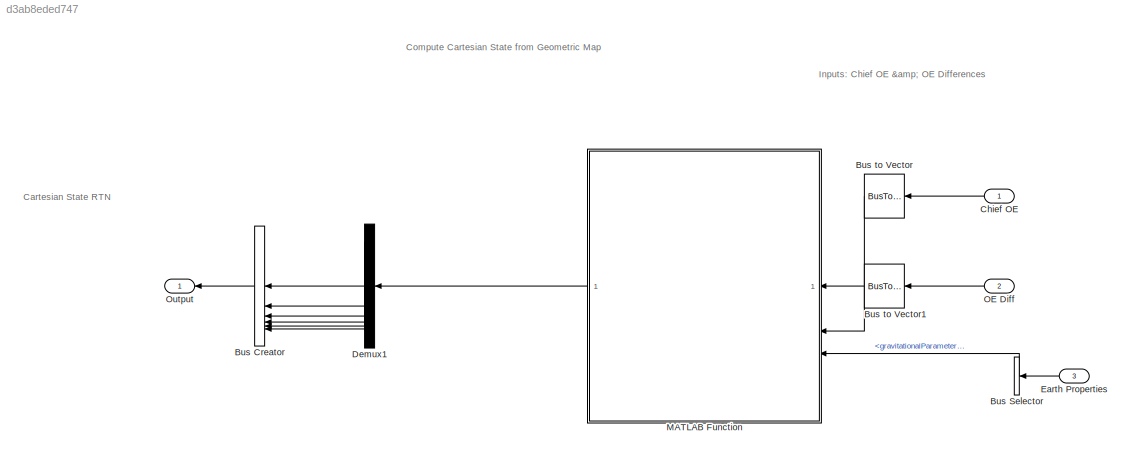
MODEL slx_d3ab8eded747
KIND model
CONFIG AbsTol = auto
CONFIG EnableMultiTasking = off
CONFIG FixedStep = dt
CONFIG MaxStep = auto
CONFIG MinStep = auto
CONFIG RelTol = 1e-3
CONFIG SampleTimeConstraint = Unconstrained
CONFIG SolverName = ode4
CONFIG StartTime = 0.0
CONFIG StopTime = 10.0
BLOCK [BusCreator] Bus Creator
  DisplayOption = bar
  InheritFromInputs = off
  Inputs = 6
  OutDataTypeStr = Bus: relativeCartesianState
BLOCK [BusSelector] Bus Selector
  OutputSignals = gravitationalParameter_m3_s2
BLOCK [BusToVector] Bus to Vector
BLOCK [BusToVector] Bus to Vector1
BLOCK [Inport] Chief OE
  OutDataTypeStr = Bus: osculatingOrbitElements
BLOCK [Demux] Demux1
  Outputs = 6
BLOCK [Inport] Earth Properties
  OutDataTypeStr = Bus: earthProperties
  Port = 3
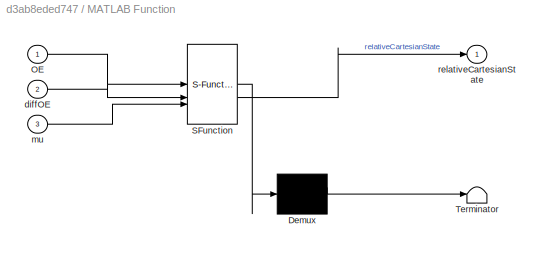
BLOCK [SubSystem] MATLAB Function
  ErrorFcn = Stateflow.Translate.translate
  LibrarySourceBlock = simulink/User-Defined\nFunctions/MATLAB Function
  PermitHierarchicalResolution = ExplicitOnly
  SFBlockType = MATLAB Function
  TreatAsAtomicUnit = on
BLOCK [Demux] MATLAB Function/ Demux 
  Outputs = 1
BLOCK [S-Function] MATLAB Function/ SFunction 
  EnableBusSupport = on
  FunctionName = sf_sfun
  PortCounts = [3 2]
  SFcnIsStateOwnerBlock = off
  SFunctionDeploymentMode = off
  Tag = Stateflow S-Function 2
BLOCK [Terminator] MATLAB Function/ Terminator 
BLOCK [Inport] MATLAB Function/OE
BLOCK [Inport] MATLAB Function/diffOE
  Port = 2
BLOCK [Inport] MATLAB Function/mu
  Port = 3
BLOCK [Outport] MATLAB Function/relativeCartesianState
BLOCK [Inport] OE Diff
  OutDataTypeStr = Bus: orbitElementDifferences
  Port = 2
BLOCK [Outport] Output
  OutDataTypeStr = Bus: relativeCartesianState
ANNOTATION (root): Inputs: Chief OE & OE Differences
ANNOTATION (root): Cartesian State RTN
ANNOTATION (root): Compute Cartesian State from Geometric Map
LINE Bus Creator:1 -> Output:1
LINE Bus Selector:1 -> MATLAB Function:3
LINE Bus to Vector1:1 -> MATLAB Function:2
LINE Bus to Vector:1 -> MATLAB Function:1
LINE Chief OE:1 -> Bus to Vector:1
LINE Demux1:1 -> Bus Creator:1
LINE Demux1:2 -> Bus Creator:2
LINE Demux1:3 -> Bus Creator:3
LINE Demux1:4 -> Bus Creator:4
LINE Demux1:5 -> Bus Creator:5
LINE Demux1:6 -> Bus Creator:6
LINE Earth Properties:1 -> Bus Selector:1
LINE MATLAB Function:1 -> Demux1:1
LINE OE Diff:1 -> Bus to Vector1:1
CHART MATLAB Function states=1 transitions=1
  STATE_LABEL 'eML_blk_kernel()'
  STATE_LABEL 'SCRIPT:\nfunction relativeCartesianState = mapOEdiff2RTN(OE,diffOE,mu)\nrelativeCartesianState = mapOEdiff2RTN(diffOE,OE,mu);\nend\n'
CHART  states=0 transitions=0
